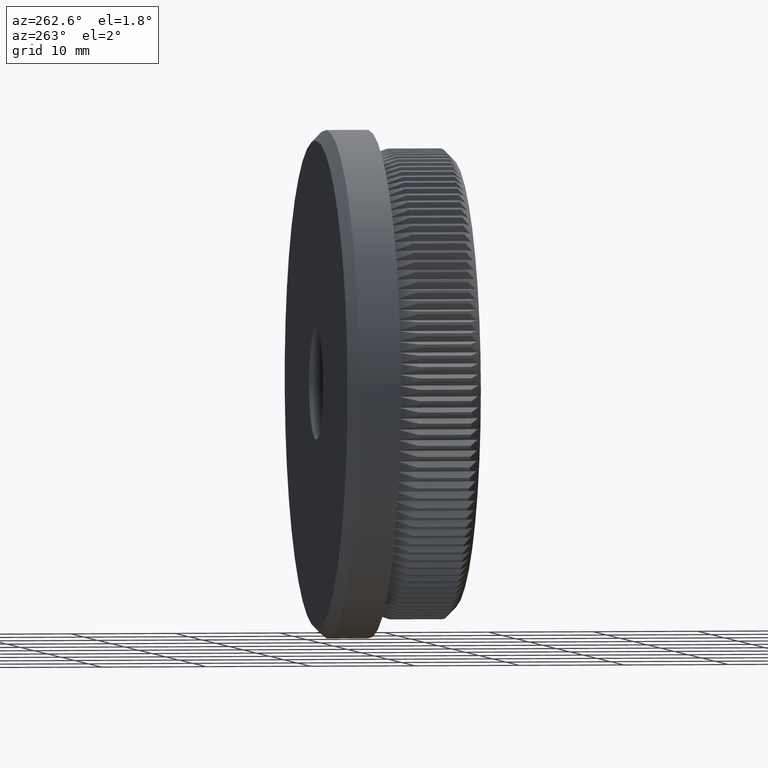
[diagram: clean part render]
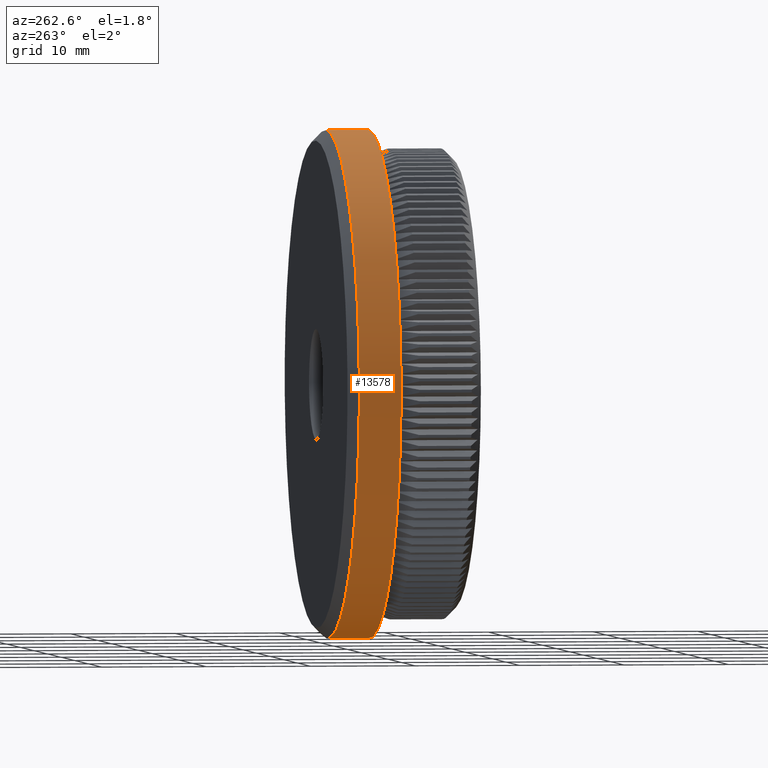
[diagram: same view with one face highlighted and labeled with its STEP entity id]
A machine part, auxiliary view. The second image highlights one B-rep face of the part: STEP entity #13578.
In plain terms, the highlighted cylindrical surface (partial cylindrical patch) has radius 24.15 mm, axis along (-0, -1, -0).
Its self-contained STEP definition (entity closure, byte-faithful):
#659 = ORIENTED_EDGE ( 'NONE', *, *, #21046, .T. ) ;
#714 = AXIS2_PLACEMENT_3D ( 'NONE', #15754, #13307, #30988 ) ;
#899 = CARTESIAN_POINT ( 'NONE',  ( 0.0000000000000000000, 0.0000000000000000000, -24.14999999999999900 ) ) ;
#1386 = EDGE_LOOP ( 'NONE', ( #21593, #659, #29163, #12158 ) ) ;
#1610 = CARTESIAN_POINT ( 'NONE',  ( 2.957522019940857900E-015, 8.000000000000000000, 24.14999999999999900 ) ) ;
#2421 = VERTEX_POINT ( 'NONE', #4692 ) ;
#3481 = DIRECTION ( 'NONE',  ( -0.0000000000000000000, -1.000000000000000000, -0.0000000000000000000 ) ) ;
#4692 = CARTESIAN_POINT ( 'NONE',  ( 2.957522019940857900E-015, 11.99999999999999500, 24.14999999999999900 ) ) ;
#4898 = DIRECTION ( 'NONE',  ( 0.0000000000000000000, 0.0000000000000000000, -1.000000000000000000 ) ) ;
#5235 = LINE ( 'NONE', #899, #13079 ) ;
#5390 = VECTOR ( 'NONE', #3481, 1000.000000000000000 ) ;
#6561 = EDGE_CURVE ( 'NONE', #23398, #25145, #25316, .T. ) ;
#6569 = EDGE_CURVE ( 'NONE', #17901, #25145, #5235, .T. ) ;
#8805 = DIRECTION ( 'NONE',  ( 0.0000000000000000000, 0.0000000000000000000, -1.000000000000000000 ) ) ;
#11156 = FACE_OUTER_BOUND ( 'NONE', #1386, .T. ) ;
#12158 = ORIENTED_EDGE ( 'NONE', *, *, #6561, .F. ) ;
#13079 = VECTOR ( 'NONE', #17753, 1000.000000000000000 ) ;
#13307 = DIRECTION ( 'NONE',  ( -0.0000000000000000000, -1.000000000000000000, -0.0000000000000000000 ) ) ;
#13578 = ADVANCED_FACE ( 'NONE', ( #11156 ), #25318, .T. ) ;
#15091 = CARTESIAN_POINT ( 'NONE',  ( 0.0000000000000000000, 11.99999999999999500, -24.14999999999999900 ) ) ;
#15754 = CARTESIAN_POINT ( 'NONE',  ( 0.0000000000000000000, 11.99999999999999500, 0.0000000000000000000 ) ) ;
#17753 = DIRECTION ( 'NONE',  ( -0.0000000000000000000, -1.000000000000000000, -0.0000000000000000000 ) ) ;
#17901 = VERTEX_POINT ( 'NONE', #15091 ) ;
#19030 = CARTESIAN_POINT ( 'NONE',  ( 2.957522019940857900E-015, 0.0000000000000000000, 24.14999999999999900 ) ) ;
#21046 = EDGE_CURVE ( 'NONE', #2421, #17901, #24759, .T. ) ;
#21593 = ORIENTED_EDGE ( 'NONE', *, *, #27023, .F. ) ;
#22069 = AXIS2_PLACEMENT_3D ( 'NONE', #29289, #27812, #4898 ) ;
#23398 = VERTEX_POINT ( 'NONE', #1610 ) ;
#23903 = DIRECTION ( 'NONE',  ( -0.0000000000000000000, -1.000000000000000000, -0.0000000000000000000 ) ) ;
#24759 = CIRCLE ( 'NONE', #714, 24.14999999999999900 ) ;
#25145 = VERTEX_POINT ( 'NONE', #25321 ) ;
#25316 = CIRCLE ( 'NONE', #22069, 24.14999999999999900 ) ;
#25318 = CYLINDRICAL_SURFACE ( 'NONE', #26333, 24.14999999999999900 ) ;
#25321 = CARTESIAN_POINT ( 'NONE',  ( 0.0000000000000000000, 8.000000000000000000, -24.14999999999999900 ) ) ;
#26333 = AXIS2_PLACEMENT_3D ( 'NONE', #31392, #23903, #8805 ) ;
#27023 = EDGE_CURVE ( 'NONE', #2421, #23398, #32182, .T. ) ;
#27812 = DIRECTION ( 'NONE',  ( -0.0000000000000000000, -1.000000000000000000, -0.0000000000000000000 ) ) ;
#29163 = ORIENTED_EDGE ( 'NONE', *, *, #6569, .T. ) ;
#29289 = CARTESIAN_POINT ( 'NONE',  ( 0.0000000000000000000, 8.000000000000000000, 0.0000000000000000000 ) ) ;
#30988 = DIRECTION ( 'NONE',  ( 0.0000000000000000000, 0.0000000000000000000, 1.000000000000000000 ) ) ;
#31392 = CARTESIAN_POINT ( 'NONE',  ( 0.0000000000000000000, 0.0000000000000000000, 0.0000000000000000000 ) ) ;
#32182 = LINE ( 'NONE', #19030, #5390 ) ;